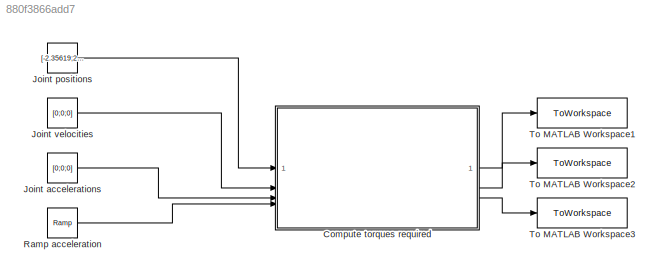
MODEL slx_880f3866add7
KIND model
CONFIG AbsTol = auto
CONFIG EnableMultiTasking = off
CONFIG FixedStep = auto
CONFIG MaxStep = auto
CONFIG MinStep = auto
CONFIG RelTol = 1e-3
CONFIG SampleTimeConstraint = Unconstrained
CONFIG SolverName = VariableStepAuto
CONFIG StartTime = 0.0
CONFIG StopTime = 10.0
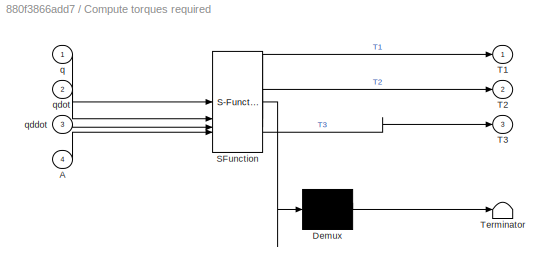
BLOCK [SubSystem] Compute torques required
  ErrorFcn = Stateflow.Translate.translate
  PermitHierarchicalResolution = ExplicitOnly
  SFBlockType = MATLAB Function
  TreatAsAtomicUnit = on
BLOCK [Demux] Compute torques required/ Demux 
  Outputs = 1
BLOCK [S-Function] Compute torques required/ SFunction 
  EnableBusSupport = on
  FunctionName = sf_sfun
  PortCounts = [4 4]
  SFcnIsStateOwnerBlock = off
  SFunctionDeploymentMode = off
  Tag = Stateflow S-Function 1
BLOCK [Terminator] Compute torques required/ Terminator 
BLOCK [Inport] Compute torques required/A
  Port = 4
BLOCK [Outport] Compute torques required/T1
  VectorParamsAs1DForOutWhenUnconnected = off
BLOCK [Outport] Compute torques required/T2
  Port = 2
BLOCK [Outport] Compute torques required/T3
  Port = 3
BLOCK [Inport] Compute torques required/q
BLOCK [Inport] Compute torques required/qddot
  Port = 3
BLOCK [Inport] Compute torques required/qdot
  Port = 2
BLOCK [Constant] Joint accelerations
  Value = [0;0;0]
  VectorParams1D = off
BLOCK [Constant] Joint positions
  Value = [-2.35619;2.83896;-1.19025]
  VectorParams1D = off
BLOCK [Constant] Joint velocities
  Value = [0;0;0]
  VectorParams1D = off
BLOCK [Reference] Ramp acceleration  REF=simulink/Sources/Ramp
  SourceBlock = simulink/Sources/Ramp
  SourceType = Ramp
BLOCK [ToWorkspace] To MATLAB Workspace1
  FixptAsFi = on
  MaxDataPoints = inf
  SampleTime = -1
  SaveFormat = Timeseries
  VariableName = T1
BLOCK [ToWorkspace] To MATLAB Workspace2
  FixptAsFi = on
  MaxDataPoints = inf
  SampleTime = -1
  SaveFormat = Timeseries
  VariableName = T2
BLOCK [ToWorkspace] To MATLAB Workspace3
  FixptAsFi = on
  MaxDataPoints = inf
  SampleTime = -1
  SaveFormat = Timeseries
  VariableName = T3
LINE Compute torques required:1 -> To MATLAB Workspace1:1
LINE Compute torques required:2 -> To MATLAB Workspace2:1
LINE Compute torques required:3 -> To MATLAB Workspace3:1
LINE Joint accelerations:1 -> Compute torques required:3
LINE Joint positions:1 -> Compute torques required:1
LINE Joint velocities:1 -> Compute torques required:2
LINE Ramp acceleration:1 -> Compute torques required:4
CHART Compute torques required states=1 transitions=1
  STATE_LABEL 'eML_blk_kernel()'
  STATE_LABEL "SCRIPT:\nfunction [T1,T2,T3] = equation_of_motion_function(q, qdot, qddot, A)\n    \n% Define constants\nm = [0; 1.17; 0.83];\nL = [0; 0.7; 0.5];\nr = [0; 0.02; 0.02];\np = [0; 1330.0806; 1320.98603];\n\n% Distance from each frame to the associated body's com (respect to b-f-f)\nLc1 = [0; -L(1)/2; 0];\nLc2 = [-L(2)/2; 0; 0];\nLc3 = [-L(3)/2; 0; 0];\n\n% Define Inertia Matrices with respect to the bode-fixed-fra...<+3021ch>"
CHART  states=0 transitions=0
